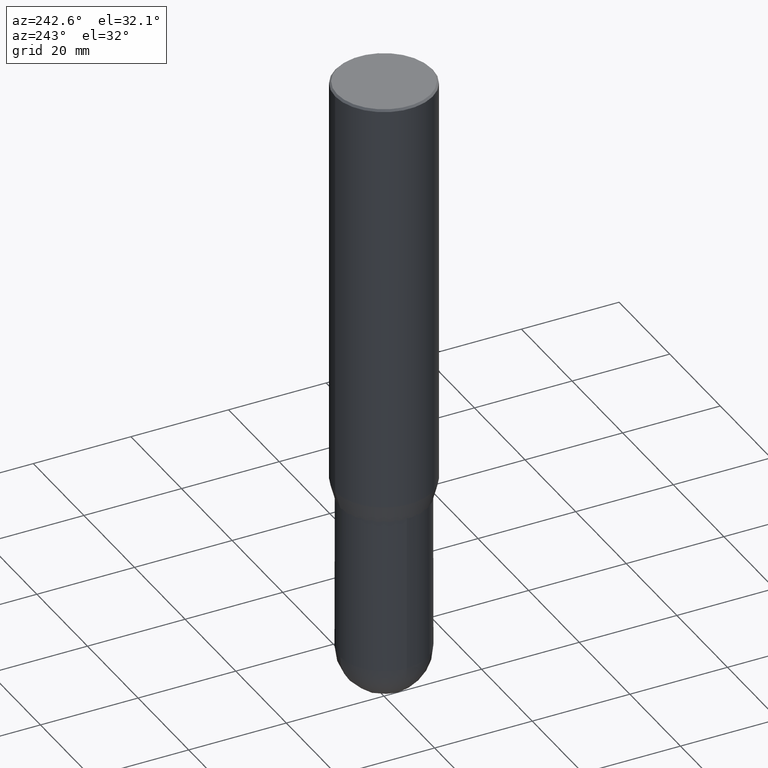
[diagram: clean part render]
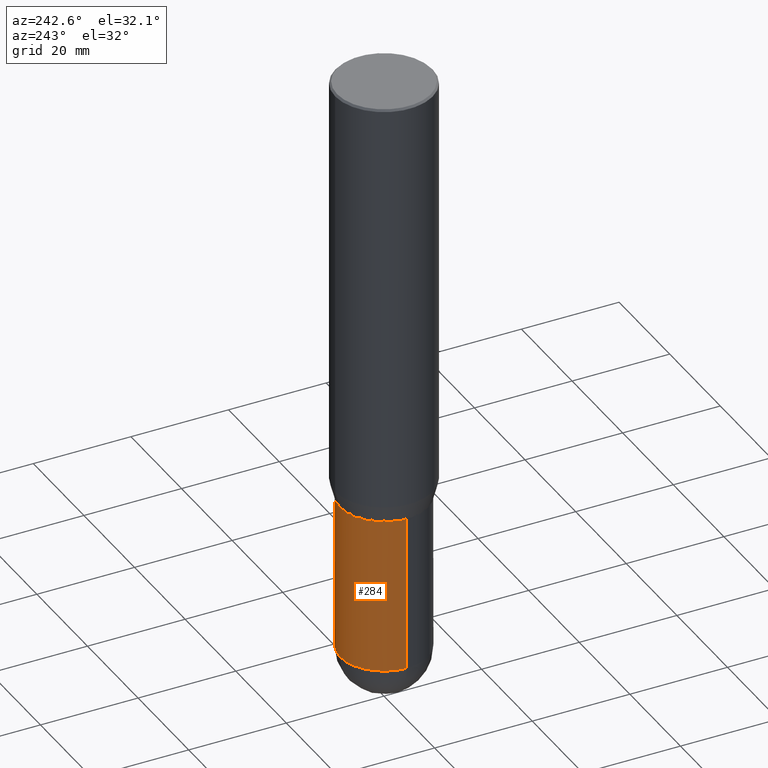
[diagram: same view with one face highlighted and labeled with its STEP entity id]
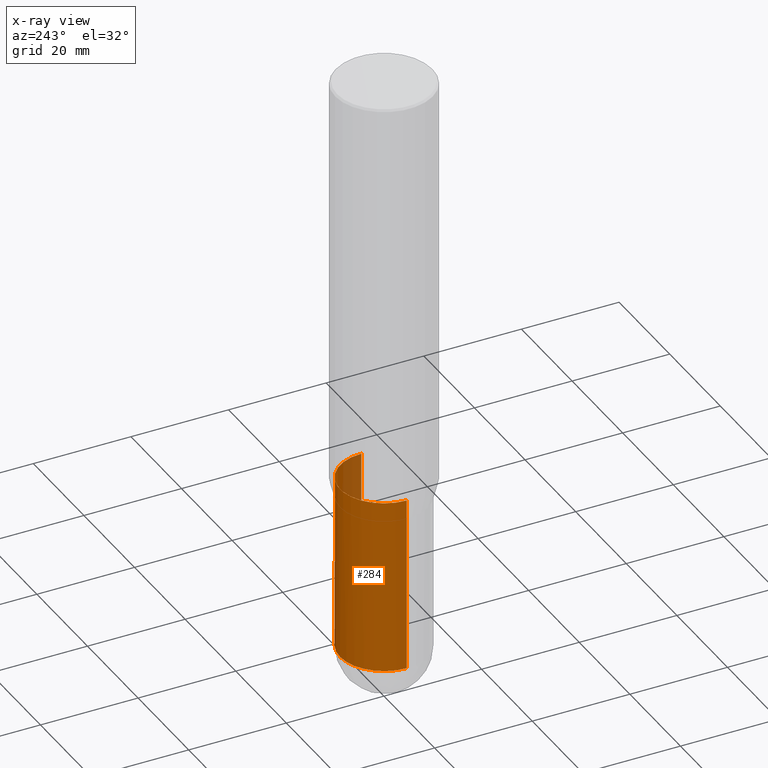
[diagram: x-ray of the same camera — body ghosted, the highlighted face saturated]
A machine part, auxiliary view. The second image highlights one B-rep face of the part: STEP entity #284.
The next image is the same camera in x-ray: the body ghosted, the highlighted face saturated — about 6% of this face is hidden behind the body in this view.
In plain terms, the highlighted cylindrical surface (partial cylindrical patch) has radius 9.0005 mm, axis along (-0, 0, 1).
Its self-contained STEP definition (entity closure, byte-faithful):
#2 = DIRECTION ( 'NONE',  ( -2.445468806185136597E-29, 3.491481338843145583E-15, 1.000000000000000000 ) ) ;
#8 = CARTESIAN_POINT ( 'NONE',  ( -0.3543500000000000538, 2.517808184165915391E-15, -1.743024649231826346E-29 ) ) ;
#12 = VERTEX_POINT ( 'NONE', #26 ) ;
#26 = CARTESIAN_POINT ( 'NONE',  ( -0.3543500000000000538, -1.164041050594345640E-14, -4.763749999999999929 ) ) ;
#37 = VERTEX_POINT ( 'NONE', #422 ) ;
#46 = ORIENTED_EDGE ( 'NONE', *, *, #175, .T. ) ;
#52 = CYLINDRICAL_SURFACE ( 'NONE', #126, 0.3543500000000000538 ) ;
#77 = EDGE_CURVE ( 'NONE', #37, #12, #451, .T. ) ;
#90 = CARTESIAN_POINT ( 'NONE',  ( -0.3543500000000000538, -1.164041050594345483E-14, -3.346400000000000041 ) ) ;
#108 = CARTESIAN_POINT ( 'NONE',  ( 0.3543500000000000538, -1.415830597714283281E-14, -3.346400000000000041 ) ) ;
#118 = CARTESIAN_POINT ( 'NONE',  ( 0.3543500000000000538, -1.663263151494750088E-14, -4.763749999999999929 ) ) ;
#126 = AXIS2_PLACEMENT_3D ( 'NONE', #372, #169, #130 ) ;
#129 = VERTEX_POINT ( 'NONE', #118 ) ;
#130 = DIRECTION ( 'NONE',  ( 1.000000000000000000, -6.982962677686266711E-15, 4.876176775795936353E-29 ) ) ;
#131 = CARTESIAN_POINT ( 'NONE',  ( 1.164960202546444527E-28, -1.663254422791403592E-14, -4.763749999999999929 ) ) ;
#142 = DIRECTION ( 'NONE',  ( 1.000000000000000000, -6.982962677686270655E-15, 0.000000000000000000 ) ) ;
#144 = ORIENTED_EDGE ( 'NONE', *, *, #77, .T. ) ;
#156 = DIRECTION ( 'NONE',  ( 1.000000000000000000, -6.982962677686270655E-15, 0.000000000000000000 ) ) ;
#157 = ORIENTED_EDGE ( 'NONE', *, *, #267, .F. ) ;
#161 = AXIS2_PLACEMENT_3D ( 'NONE', #432, #2, #156 ) ;
#165 = CARTESIAN_POINT ( 'NONE',  ( 0.3543500000000000538, -2.474412824838129089E-15, 1.727873240503290310E-29 ) ) ;
#166 = CIRCLE ( 'NONE', #161, 0.3543500000000000538 ) ;
#169 = DIRECTION ( 'NONE',  ( -2.445468806185136597E-29, 3.491481338843145583E-15, 1.000000000000000000 ) ) ;
#174 = DIRECTION ( 'NONE',  ( -2.445468806185136597E-29, 3.491481338843145583E-15, 1.000000000000000000 ) ) ;
#175 = EDGE_CURVE ( 'NONE', #129, #37, #480, .T. ) ;
#197 = VECTOR ( 'NONE', #198, 39.37007874015748143 ) ;
#198 = DIRECTION ( 'NONE',  ( -2.445468806185136877E-29, 3.491481338843145188E-15, 1.000000000000000000 ) ) ;
#207 = DIRECTION ( 'NONE',  ( -2.445468806185136877E-29, 3.491481338843145188E-15, 1.000000000000000000 ) ) ;
#212 = DIRECTION ( 'NONE',  ( -2.445468806185136597E-29, 3.491481338843145583E-15, 1.000000000000000000 ) ) ;
#261 = EDGE_CURVE ( 'NONE', #12, #296, #365, .T. ) ;
#267 = EDGE_CURVE ( 'NONE', #129, #496, #367, .T. ) ;
#269 = AXIS2_PLACEMENT_3D ( 'NONE', #363, #174, #285 ) ;
#284 = ADVANCED_FACE ( 'NONE', ( #405 ), #52, .T. ) ;
#285 = DIRECTION ( 'NONE',  ( 1.000000000000000000, -6.982962677686270655E-15, 0.000000000000000000 ) ) ;
#296 = VERTEX_POINT ( 'NONE', #90 ) ;
#363 = CARTESIAN_POINT ( 'NONE',  ( 1.164960202546444527E-28, -1.663254422791403592E-14, -4.763749999999999929 ) ) ;
#365 = LINE ( 'NONE', #8, #197 ) ;
#367 = LINE ( 'NONE', #165, #392 ) ;
#372 = CARTESIAN_POINT ( 'NONE',  ( 0.000000000000000000, 0.000000000000000000, 0.000000000000000000 ) ) ;
#392 = VECTOR ( 'NONE', #207, 39.37007874015748143 ) ;
#399 = ORIENTED_EDGE ( 'NONE', *, *, #261, .T. ) ;
#402 = EDGE_LOOP ( 'NONE', ( #144, #399, #488, #157, #46 ) ) ;
#404 = EDGE_CURVE ( 'NONE', #496, #296, #166, .T. ) ;
#405 = FACE_OUTER_BOUND ( 'NONE', #402, .T. ) ;
#422 = CARTESIAN_POINT ( 'NONE',  ( 2.474412824838244657E-15, 0.3543499999999834005, -4.763750000000001705 ) ) ;
#432 = CARTESIAN_POINT ( 'NONE',  ( 8.183516813017942119E-29, -1.168389315230470294E-14, -3.346400000000000041 ) ) ;
#451 = CIRCLE ( 'NONE', #453, 0.3543500000000000538 ) ;
#453 = AXIS2_PLACEMENT_3D ( 'NONE', #131, #212, #142 ) ;
#480 = CIRCLE ( 'NONE', #269, 0.3543500000000000538 ) ;
#488 = ORIENTED_EDGE ( 'NONE', *, *, #404, .F. ) ;
#496 = VERTEX_POINT ( 'NONE', #108 ) ;